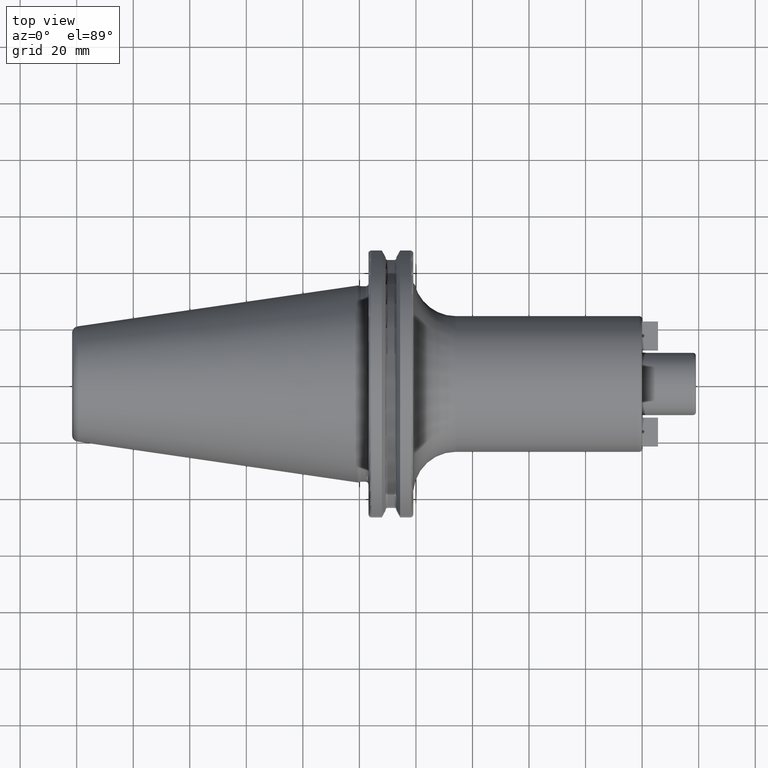
[diagram: clean part render]
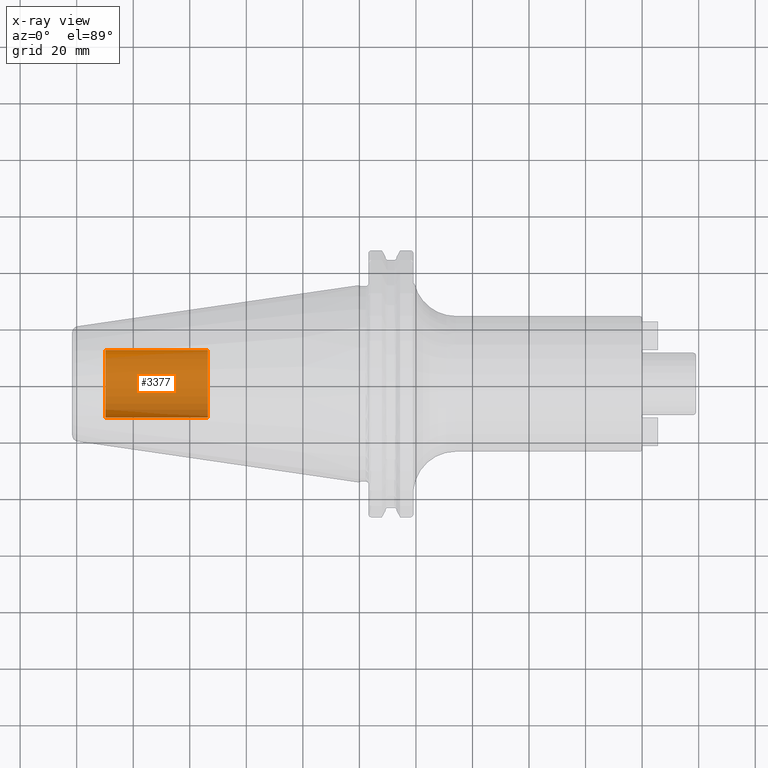
[diagram: x-ray — body ghosted, one internal face saturated and labeled with its STEP entity id]
A machine part, top view, then the same camera in x-ray: the body is ghosted and one INTERNAL B-rep face — a face not visible from any outside direction — is saturated and labeled: STEP entity #3377.
In plain terms, the highlighted cylindrical surface (edge-blend (fillet) strip) has radius 12.0032 mm, axis along (1, 0, 0).
Its self-contained STEP definition (entity closure, byte-faithful):
#3312=CARTESIAN_POINT('',(-8.985E1,0.E0,0.E0));
#3313=DIRECTION('',(-1.E0,0.E0,0.E0));
#3314=DIRECTION('',(0.E0,1.E0,0.E0));
#3315=AXIS2_PLACEMENT_3D('',#3312,#3313,#3314);
#3317=DIRECTION('',(1.E0,0.E0,0.E0));
#3318=VECTOR('',#3317,3.625E1);
#3319=CARTESIAN_POINT('',(-8.985E1,-1.200325E1,0.E0));
#3320=LINE('',#3319,#3318);
#3326=DIRECTION('',(1.E0,0.E0,0.E0));
#3327=VECTOR('',#3326,3.625E1);
#3328=CARTESIAN_POINT('',(-8.985E1,1.200325E1,0.E0));
#3329=LINE('',#3328,#3327);
#3335=CARTESIAN_POINT('',(-5.36E1,0.E0,0.E0));
#3336=DIRECTION('',(1.E0,0.E0,0.E0));
#3337=DIRECTION('',(0.E0,-1.E0,0.E0));
#3338=AXIS2_PLACEMENT_3D('',#3335,#3336,#3337);
#3350=CARTESIAN_POINT('',(-8.985E1,1.200325E1,0.E0));
#3351=CARTESIAN_POINT('',(-8.985E1,-1.200325E1,0.E0));
#3352=VERTEX_POINT('',#3350);
#3353=VERTEX_POINT('',#3351);
#3354=CARTESIAN_POINT('',(-5.36E1,1.200325E1,0.E0));
#3355=CARTESIAN_POINT('',(-5.36E1,-1.200325E1,0.E0));
#3356=VERTEX_POINT('',#3354);
#3357=VERTEX_POINT('',#3355);
#3362=CARTESIAN_POINT('',(-8.985E1,0.E0,0.E0));
#3363=DIRECTION('',(1.E0,0.E0,0.E0));
#3364=DIRECTION('',(0.E0,1.E0,0.E0));
#3365=AXIS2_PLACEMENT_3D('',#3362,#3363,#3364);
#3366=CYLINDRICAL_SURFACE('',#3365,1.200325E1);
#3368=ORIENTED_EDGE('',*,*,#3367,.T.);
#3370=ORIENTED_EDGE('',*,*,#3369,.T.);
#3372=ORIENTED_EDGE('',*,*,#3371,.T.);
#3374=ORIENTED_EDGE('',*,*,#3373,.F.);
#3375=EDGE_LOOP('',(#3368,#3370,#3372,#3374));
#3376=FACE_OUTER_BOUND('',#3375,.F.);
#3377=ADVANCED_FACE('',(#3376),#3366,.T.);
#3316=CIRCLE('',#3315,1.200325E1);
#3339=CIRCLE('',#3338,1.200325E1);
#3367=EDGE_CURVE('',#3352,#3353,#3316,.T.);
#3369=EDGE_CURVE('',#3353,#3357,#3320,.T.);
#3371=EDGE_CURVE('',#3357,#3356,#3339,.T.);
#3373=EDGE_CURVE('',#3352,#3356,#3329,.T.);